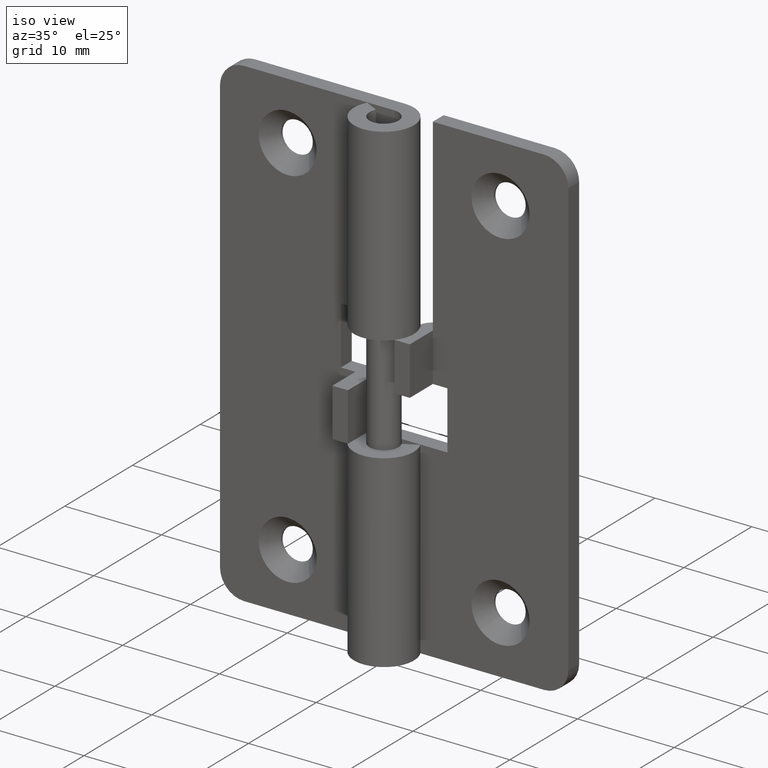
[diagram: clean part render]
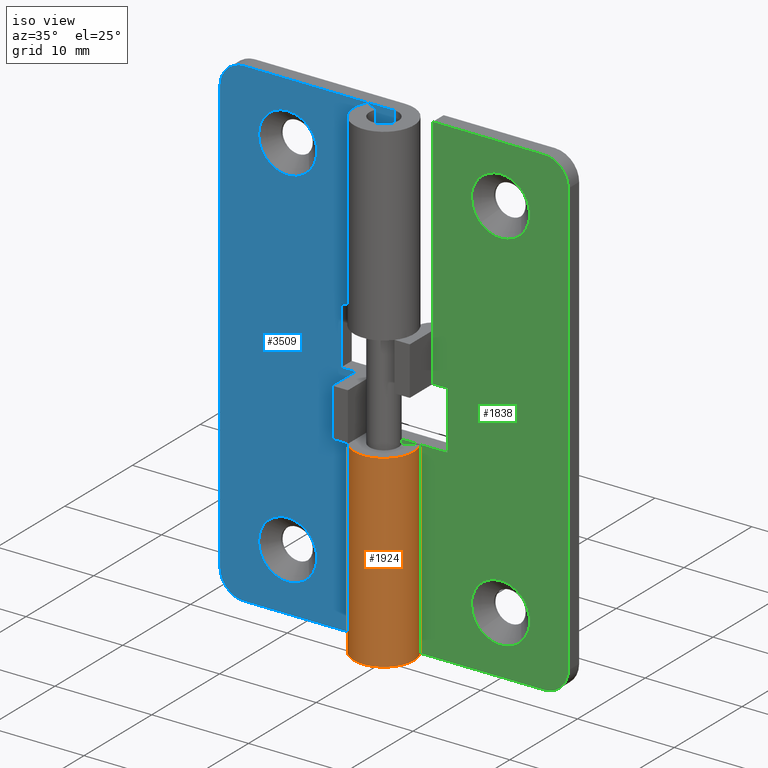
[diagram: same view with three faces highlighted in distinct colors, each labeled with its STEP entity id]
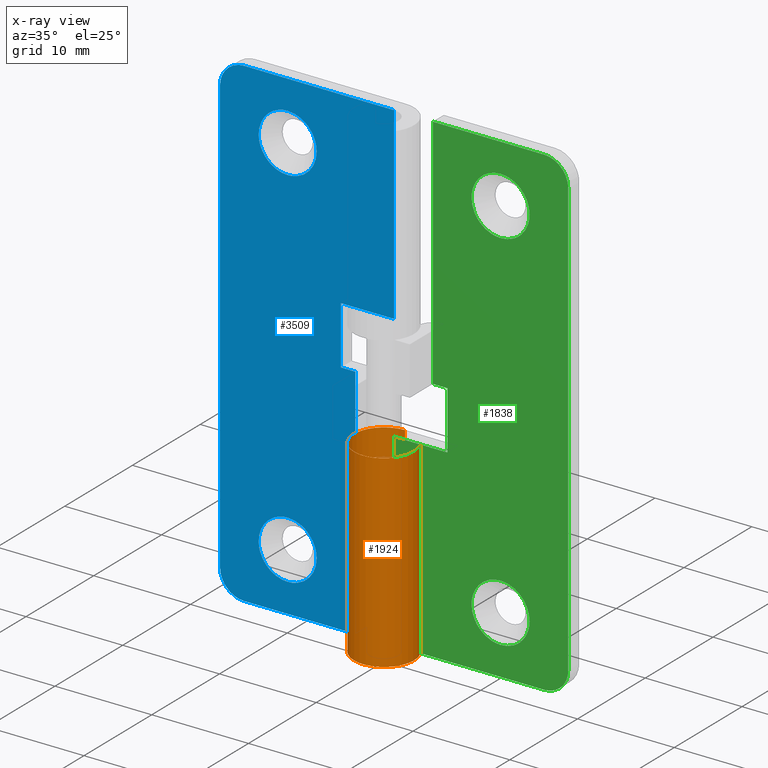
[diagram: x-ray of the same camera — body ghosted, the three highlighted faces saturated]
A machine part, iso view with three faces highlighted in distinct colors.
The next image is the same camera in x-ray (body ghosted, the three faces saturated) — at least one of them is partly hidden behind the body in this view.
Their STEP definitions:

[orange] entity #1924 — the highlighted face is a freeform B-spline surface patch.
#1357=CARTESIAN_POINT('',(0.0,3.100002000000000,19.500000000000000));
#1358=VERTEX_POINT('',#1357);
#1359=CARTESIAN_POINT('',(-1.599213554981781,-2.655666362375521,19.500000000000000));
#1360=VERTEX_POINT('',#1359);
#1361=CARTESIAN_POINT('',(0.0,3.100002000000000,19.500000000000000));
#1362=CARTESIAN_POINT('',(-0.220354141231056,3.100041655949251,19.499999999999979));
#1363=CARTESIAN_POINT('',(-0.587586340449858,3.060661259385621,19.500000000000060));
#1364=CARTESIAN_POINT('',(-1.193451300869684,2.883666341587294,19.499999999999911));
#1365=CARTESIAN_POINT('',(-1.718225046226158,2.608912993477227,19.500000000000110));
#1366=CARTESIAN_POINT('',(-2.154791628538967,2.244365825748330,19.499999999999879));
#1367=CARTESIAN_POINT('',(-2.539554166504057,1.812775552614183,19.500000000000259));
#1368=CARTESIAN_POINT('',(-2.863373232118977,1.266465549805293,19.499999999999691));
#1369=CARTESIAN_POINT('',(-3.054350544505172,0.629277963395149,19.500000000000110));
#1370=CARTESIAN_POINT('',(-3.120682201269755,-0.009234162655363,19.499999999999929));
#1371=CARTESIAN_POINT('',(-3.064805186370466,-0.598570502617032,19.500000000000050));
#1372=CARTESIAN_POINT('',(-2.901473813870882,-1.121343539513749,19.499999999999950));
#1373=CARTESIAN_POINT('',(-2.688907562135958,-1.567207862000972,19.500000000000028));
#1374=CARTESIAN_POINT('',(-2.315494378992751,-2.116449466917167,19.499999999999950));
#1375=CARTESIAN_POINT('',(-1.896003720779815,-2.477220210333711,19.499999999999972));
#1376=CARTESIAN_POINT('',(-1.599213554981781,-2.655666362375521,19.500000000000000));
#1377=B_SPLINE_CURVE_WITH_KNOTS('',3,(#1361,#1362,#1363,#1364,#1365,#1366,#1367,#1368,#1369,#1370,#1371,#1372,#1373,#1374,#1375,#1376),.UNSPECIFIED.,.F.,.U.,(4,1,1,1,1,1,1,1,1,1,1,1,1,4),(0.000000137951071,0.661053900856061,1.101768180298366,1.888756636234779,2.423909275321504,2.801670161706647,3.620121326485430,4.312632884064888,4.784830670244383,5.540353606740831,6.075505701115500,6.421779887115845,7.019886405325571,8.058700535100030),.UNSPECIFIED.);
#1378=EDGE_CURVE('',#1358,#1360,#1377,.T.);
#1380=CARTESIAN_POINT('',(2.739979116877470,1.450017806480628,19.500000000000000));
#1381=VERTEX_POINT('',#1380);
#1382=CARTESIAN_POINT('',(-1.599213554981781,-2.655666362375521,19.500000000000000));
#1383=CARTESIAN_POINT('',(-1.410463657645814,-2.769373480697419,19.500000000000011));
#1384=CARTESIAN_POINT('',(-1.075555663697411,-2.925095541161150,19.500000000000000));
#1385=CARTESIAN_POINT('',(-0.577114771429349,-3.056460498182061,19.500000000000011));
#1386=CARTESIAN_POINT('',(-0.138234924043104,-3.107392288223059,19.499999999999918));
#1387=CARTESIAN_POINT('',(0.377052588891971,-3.093698877414701,19.500000000000082));
#1388=CARTESIAN_POINT('',(0.935055212774864,-2.978073402128163,19.499999999999879));
#1389=CARTESIAN_POINT('',(1.438357800029094,-2.760838282681207,19.500000000000160));
#1390=CARTESIAN_POINT('',(1.891222051281780,-2.473862186340986,19.500000000000281));
#1391=CARTESIAN_POINT('',(2.285146486244192,-2.123261577677471,19.499999999999140));
#1392=CARTESIAN_POINT('',(2.687241868505284,-1.595048048625539,19.499999999999641));
#1393=CARTESIAN_POINT('',(2.961961892512929,-0.999538342001350,19.500000000001780));
#1394=CARTESIAN_POINT('',(3.086497492610616,-0.411679720688347,19.499999999999019));
#1395=CARTESIAN_POINT('',(3.113336773354832,0.166086950988425,19.499999999999620));
#1396=CARTESIAN_POINT('',(3.028575172153826,0.783608803119065,19.500000000002611));
#1397=CARTESIAN_POINT('',(2.852905902626935,1.236728197239146,19.499999999996380));
#1398=CARTESIAN_POINT('',(2.739979116877470,1.450017806480628,19.500000000000000));
#1399=B_SPLINE_CURVE_WITH_KNOTS('',3,(#1382,#1383,#1384,#1385,#1386,#1387,#1388,#1389,#1390,#1391,#1392,#1393,#1394,#1395,#1396,#1397,#1398),.UNSPECIFIED.,.F.,.U.,(4,1,1,1,1,1,1,1,1,1,1,1,1,1,4),(0.000000138034990,0.661053862114447,1.101768115755126,1.542482275759558,1.983196633439818,2.644266474914692,3.242379406099055,3.620121116360793,4.249678708263621,4.816329239068423,5.603309081357913,6.201423304016623,6.610664484400884,7.334684765018944,8.058700064193332),.UNSPECIFIED.);
#1400=EDGE_CURVE('',#1360,#1381,#1399,.T.);
#1695=CARTESIAN_POINT('',(0.0,3.100005999999920,0.0));
#1696=VERTEX_POINT('',#1695);
#1747=CARTESIAN_POINT('',(2.739979116877470,1.450017806480626,0.0));
#1748=VERTEX_POINT('',#1747);
#1754=CARTESIAN_POINT('',(-1.599213932638567,-2.655664134955736,0.0));
#1755=VERTEX_POINT('',#1754);
#1756=CARTESIAN_POINT('',(-1.599213932638567,-2.655664134955736,0.0));
#1757=CARTESIAN_POINT('',(-1.410463529529099,-2.769367712431758,0.0));
#1758=CARTESIAN_POINT('',(-1.008578184479177,-2.956252625924666,0.0));
#1759=CARTESIAN_POINT('',(-0.308629603779430,-3.114453444299730,0.0));
#1760=CARTESIAN_POINT('',(0.358119619292160,-3.103458703263753,0.0));
#1761=CARTESIAN_POINT('',(0.932181733474697,-2.969130406786211,0.0));
#1762=CARTESIAN_POINT('',(1.390959876542113,-2.784813979717227,0.0));
#1763=CARTESIAN_POINT('',(1.869906733009813,-2.498124430257740,0.0));
#1764=CARTESIAN_POINT('',(2.331033226376157,-2.079267227039503,0.0));
#1765=CARTESIAN_POINT('',(2.661971771934239,-1.615733438790191,0.0));
#1766=CARTESIAN_POINT('',(2.898870993656463,-1.134752314033852,0.0));
#1767=CARTESIAN_POINT('',(3.045400065835583,-0.661440285065134,0.0));
#1768=CARTESIAN_POINT('',(3.118767772784988,-0.065848768475892,0.0));
#1769=CARTESIAN_POINT('',(3.068285783858411,0.650364070920452,0.0));
#1770=CARTESIAN_POINT('',(2.887370424635193,1.171849147069588,0.0));
#1771=CARTESIAN_POINT('',(2.739979116877470,1.450017806480626,0.0));
#1772=B_SPLINE_CURVE_WITH_KNOTS('',3,(#1756,#1757,#1758,#1759,#1760,#1761,#1762,#1763,#1764,#1765,#1766,#1767,#1768,#1769,#1770,#1771),.UNSPECIFIED.,.F.,.U.,(4,1,1,1,1,1,1,1,1,1,1,1,1,4),(0.000000137918708,0.661053794528414,1.322124389290089,2.140594229630543,2.644266204039937,3.084975898927475,3.620120743059685,4.312632189541410,4.942232189659473,5.319995146863714,5.918107389246528,6.421778852825442,7.114335278605990,8.058699237253416),.UNSPECIFIED.);
#1773=EDGE_CURVE('',#1755,#1748,#1772,.T.);
#1775=CARTESIAN_POINT('',(0.0,3.100005999999920,0.0));
#1776=CARTESIAN_POINT('',(-0.220349538642803,3.100032536709714,0.0));
#1777=CARTESIAN_POINT('',(-0.703032681392937,3.048364952209422,0.0));
#1778=CARTESIAN_POINT('',(-1.311287156783747,2.833094768685873,0.0));
#1779=CARTESIAN_POINT('',(-1.878829656185737,2.490344608417046,0.0));
#1780=CARTESIAN_POINT('',(-2.340740393552502,2.071807184152871,0.0));
#1781=CARTESIAN_POINT('',(-2.697994077143679,1.561882468475072,0.0));
#1782=CARTESIAN_POINT('',(-2.934058296296745,1.044963730864287,0.0));
#1783=CARTESIAN_POINT('',(-3.075375443460060,0.515590371694811,0.0));
#1784=CARTESIAN_POINT('',(-3.121548705564540,-0.115243248815751,0.0));
#1785=CARTESIAN_POINT('',(-3.032933565512027,-0.742905580941454,0.0));
#1786=CARTESIAN_POINT('',(-2.791906889348922,-1.406495690716886,0.0));
#1787=CARTESIAN_POINT('',(-2.356651226838697,-2.082999157682701,0.0));
#1788=CARTESIAN_POINT('',(-1.886958604359158,-2.482596284732474,0.0));
#1789=CARTESIAN_POINT('',(-1.599213932638567,-2.655664134955736,0.0));
#1790=B_SPLINE_CURVE_WITH_KNOTS('',3,(#1775,#1776,#1777,#1778,#1779,#1780,#1781,#1782,#1783,#1784,#1785,#1786,#1787,#1788,#1789),.UNSPECIFIED.,.F.,.U.,(4,1,1,1,1,1,1,1,1,1,1,1,4),(0.000000137922887,0.661053881195047,1.448037314583423,1.920237294217460,2.644266550761215,3.305332237084098,3.777522088141811,4.344131427926460,4.942232837669796,5.666267152640196,6.232905162994952,7.051381996144282,8.058700293898633),.UNSPECIFIED.);
#1791=EDGE_CURVE('',#1696,#1755,#1790,.T.);
#1880=CARTESIAN_POINT('',(2.739979116877470,1.450017806480626,0.0));
#1881=CARTESIAN_POINT('',(2.739979116877470,1.450017806480628,19.500000000000000));
#1882=QUASI_UNIFORM_CURVE('',1,(#1880,#1881),.UNSPECIFIED.,.F.,.U.);
#1883=EDGE_CURVE('',#1748,#1381,#1882,.T.);
#1890=CARTESIAN_POINT('',(2.698107879547794,1.526515990862069,-0.487500000000000));
#1891=CARTESIAN_POINT('',(2.698107879547794,1.526515990862069,19.999687500000000));
#1892=CARTESIAN_POINT('',(4.560933799259007,-1.766017675529659,-0.487500000000000));
#1893=CARTESIAN_POINT('',(4.560933799259007,-1.766017675529659,19.999687499999997));
#1894=CARTESIAN_POINT('',(0.966526673177142,-2.945481860421589,-0.487500000000000));
#1895=CARTESIAN_POINT('',(0.966526673177142,-2.945481860421589,19.999687500000000));
#1896=CARTESIAN_POINT('',(-2.627880452904722,-4.124946045313520,-0.487500000000000));
#1897=CARTESIAN_POINT('',(-2.627880452904722,-4.124946045313520,19.999687499999997));
#1898=CARTESIAN_POINT('',(-3.077984969219430,-0.368843773561061,-0.487500000000000));
#1899=CARTESIAN_POINT('',(-3.077984969219430,-0.368843773561061,19.999687500000000));
#1900=CARTESIAN_POINT('',(-3.528089485534137,3.387258498191398,-0.487500000000000));
#1901=CARTESIAN_POINT('',(-3.528089485534137,3.387258498191398,19.999687499999997));
#1902=CARTESIAN_POINT('',(0.243223667510889,3.090449716076619,-0.487500000000000));
#1903=CARTESIAN_POINT('',(0.243223667510889,3.090449716076619,19.999687500000000));
#1911=(BOUNDED_SURFACE()B_SPLINE_SURFACE(1,2,((#1890,#1892,#1894,#1896,#1898,#1900,#1902),(#1891,#1893,#1895,#1897,#1899,#1901,#1903)),.UNSPECIFIED.,.F.,.F.,.U.)B_SPLINE_SURFACE_WITH_KNOTS((2,2),(3,2,2,3),(0.0,20.487187500000001),(0.0,5.870292891124143,11.740585782248290,17.610878673372429),.UNSPECIFIED.)GEOMETRIC_REPRESENTATION_ITEM()RATIONAL_B_SPLINE_SURFACE(((1.0,0.633830967398710,1.0,0.633830967398710,1.0,0.633830967398710,1.0),(1.0,0.633830967398710,1.0,0.633830967398710,1.0,0.633830967398710,1.0)))REPRESENTATION_ITEM('')SURFACE());
#1912=ORIENTED_EDGE('',*,*,#1883,.T.);
#1913=ORIENTED_EDGE('',*,*,#1400,.F.);
#1914=ORIENTED_EDGE('',*,*,#1378,.F.);
#1915=CARTESIAN_POINT('',(0.0,3.100005999999920,0.0));
#1916=CARTESIAN_POINT('',(0.0,3.100002000000000,19.500000000000000));
#1917=QUASI_UNIFORM_CURVE('',1,(#1915,#1916),.UNSPECIFIED.,.F.,.U.);
#1918=EDGE_CURVE('',#1696,#1358,#1917,.T.);
#1919=ORIENTED_EDGE('',*,*,#1918,.F.);
#1920=ORIENTED_EDGE('',*,*,#1791,.T.);
#1921=ORIENTED_EDGE('',*,*,#1773,.T.);
#1922=EDGE_LOOP('',(#1912,#1913,#1914,#1919,#1920,#1921));
#1923=FACE_OUTER_BOUND('',#1922,.T.);
#1924=ADVANCED_FACE('',(#1923),#1911,.T.);

[blue] entity #3509 — the highlighted face is a freeform B-spline surface patch.
#2272=CARTESIAN_POINT('',(-8.850047220074162,1.500000063605101,46.092310844090257));
#2273=VERTEX_POINT('',#2272);
#2279=CARTESIAN_POINT('',(-11.0,1.500000000000000,47.000015000000012));
#2280=VERTEX_POINT('',#2279);
#2281=CARTESIAN_POINT('',(-11.0,1.500000000000000,47.000015000000012));
#2282=CARTESIAN_POINT('',(-10.700366076252450,1.500000008864500,47.000149646940883));
#2283=CARTESIAN_POINT('',(-10.163615401816520,1.500000024743940,46.918918827770767));
#2284=CARTESIAN_POINT('',(-9.428362555276005,1.500000046495993,46.592084424978502));
#2285=CARTESIAN_POINT('',(-9.032836973171911,1.500000058197373,46.280261415142917));
#2286=CARTESIAN_POINT('',(-8.850047220074162,1.500000063605101,46.092310844090257));
#2287=B_SPLINE_CURVE_WITH_KNOTS('',3,(#2281,#2282,#2283,#2284,#2285,#2286),.UNSPECIFIED.,.F.,.U.,(4,1,1,4),(0.000000017668546,0.898874044831355,1.610467646718164,2.396980846779101),.UNSPECIFIED.);
#2288=EDGE_CURVE('',#2280,#2273,#2287,.T.);
#2290=CARTESIAN_POINT('',(-13.999999999999959,1.500000000000000,44.000015509028863));
#2291=VERTEX_POINT('',#2290);
#2292=CARTESIAN_POINT('',(-13.999999999999959,1.500000000000000,44.000015509028863));
#2293=CARTESIAN_POINT('',(-14.000035539023470,1.499999999999999,44.208636649064772));
#2294=CARTESIAN_POINT('',(-13.964000418174420,1.500000000000000,44.552231140889923));
#2295=CARTESIAN_POINT('',(-13.809776083586289,1.500000000000008,45.096606111140353));
#2296=CARTESIAN_POINT('',(-13.560680464653270,1.499999999999981,45.607033169759553));
#2297=CARTESIAN_POINT('',(-13.185758675213890,1.500000000000026,46.081343637919389));
#2298=CARTESIAN_POINT('',(-12.682156544030470,1.499999999999992,46.515866609323389));
#2299=CARTESIAN_POINT('',(-12.100949838087660,1.499999999999987,46.821958963302677));
#2300=CARTESIAN_POINT('',(-11.490865175099559,1.500000000000028,46.974674559297149));
#2301=CARTESIAN_POINT('',(-11.147256880611501,1.499999999999973,47.000017477590490));
#2302=CARTESIAN_POINT('',(-11.0,1.500000000000000,47.000015000000012));
#2303=B_SPLINE_CURVE_WITH_KNOTS('',3,(#2292,#2293,#2294,#2295,#2296,#2297,#2298,#2299,#2300,#2301,#2302),.UNSPECIFIED.,.F.,.U.,(4,1,1,1,1,1,1,1,4),(0.000000061384648,0.625857402552536,1.030840878743207,1.693535705879872,2.319411333266166,2.834811532312297,3.681579151361144,4.270642616794484,4.712418261729620),.UNSPECIFIED.);
#2304=EDGE_CURVE('',#2291,#2280,#2303,.T.);
#2306=CARTESIAN_POINT('',(-11.0,1.500000000000000,41.000014999999998));
#2307=VERTEX_POINT('',#2306);
#2308=CARTESIAN_POINT('',(-11.0,1.500000000000000,41.000014999999998));
#2309=CARTESIAN_POINT('',(-11.269985914808469,1.499999999999996,40.999937270499103));
#2310=CARTESIAN_POINT('',(-11.809918257304810,1.500000000000001,41.073363617945709));
#2311=CARTESIAN_POINT('',(-12.504242075905450,1.499999999999997,41.370987534653523));
#2312=CARTESIAN_POINT('',(-12.987599885385800,1.500000000000003,41.734186286040703));
#2313=CARTESIAN_POINT('',(-13.377599345341320,1.499999999999997,42.143793561401473));
#2314=CARTESIAN_POINT('',(-13.656442887310121,1.500000000000002,42.566690834647552));
#2315=CARTESIAN_POINT('',(-13.924849172518220,1.499999999999996,43.214725953195327));
#2316=CARTESIAN_POINT('',(-14.000205438131250,1.499999999999996,43.680913479414812));
#2317=CARTESIAN_POINT('',(-13.999999999999959,1.500000000000000,44.000015509028863));
#2318=B_SPLINE_CURVE_WITH_KNOTS('',3,(#2308,#2309,#2310,#2311,#2312,#2313,#2314,#2315,#2316,#2317),.UNSPECIFIED.,.F.,.U.,(4,1,1,1,1,1,1,4),(0.000000061235952,0.809946644198388,1.619896040772446,2.245771054943591,2.613913097183683,3.313418124025209,3.755210161213439,4.712418835527201),.UNSPECIFIED.);
#2319=EDGE_CURVE('',#2307,#2291,#2318,.T.);
#2321=CARTESIAN_POINT('',(-8.788167849369197,1.499999936613527,41.973244248683400));
#2322=VERTEX_POINT('',#2321);
#2323=CARTESIAN_POINT('',(-8.788167849369197,1.499999936613527,41.973244248683400));
#2324=CARTESIAN_POINT('',(-8.928166667060637,1.499999940625601,41.820413686951213));
#2325=CARTESIAN_POINT('',(-9.230280776051822,1.499999949283555,41.552606507152831));
#2326=CARTESIAN_POINT('',(-9.692120088817779,1.499999962518903,41.285333365623949));
#2327=CARTESIAN_POINT('',(-10.274669018935320,1.499999979213530,41.064235213712337));
#2328=CARTESIAN_POINT('',(-10.702043254753940,1.499999991461191,40.999875950277300));
#2329=CARTESIAN_POINT('',(-11.0,1.500000000000000,41.000014999999998));
#2330=B_SPLINE_CURVE_WITH_KNOTS('',3,(#2323,#2324,#2325,#2326,#2327,#2328,#2329),.UNSPECIFIED.,.F.,.U.,(4,1,1,1,4),(0.000000018457027,0.621777926436460,1.204704239355968,1.593300361966546,2.487111650349161),.UNSPECIFIED.);
#2331=EDGE_CURVE('',#2322,#2307,#2330,.T.);
#2363=CARTESIAN_POINT('',(-8.000000000000043,1.500000000000000,44.000014490971203));
#2364=VERTEX_POINT('',#2363);
#2365=CARTESIAN_POINT('',(-8.000000000000043,1.500000000000000,44.000014490971203));
#2366=CARTESIAN_POINT('',(-7.999833283792561,1.499999990212512,43.687061433280959));
#2367=CARTESIAN_POINT('',(-8.084205177603565,1.499999973541857,43.154020305902087));
#2368=CARTESIAN_POINT('',(-8.390619837005460,1.499999952260430,42.473551082845532));
#2369=CARTESIAN_POINT('',(-8.647207083263265,1.499999941423453,42.127040651307610));
#2370=CARTESIAN_POINT('',(-8.788167849369197,1.499999936613527,41.973244248683400));
#2371=B_SPLINE_CURVE_WITH_KNOTS('',3,(#2365,#2366,#2367,#2368,#2369,#2370),.UNSPECIFIED.,.F.,.U.,(4,1,1,4),(0.000000013950470,0.938807377976176,1.599438559575307,2.225306812300063),.UNSPECIFIED.);
#2372=EDGE_CURVE('',#2364,#2322,#2371,.T.);
#2374=CARTESIAN_POINT('',(-8.850047220074162,1.500000063605101,46.092310844090257));
#2375=CARTESIAN_POINT('',(-8.648082739788597,1.500000057301931,45.884967421624232));
#2376=CARTESIAN_POINT('',(-8.412283166241192,1.500000047400117,45.559245974524472));
#2377=CARTESIAN_POINT('',(-8.166610212595082,1.500000031033074,45.020850867164953));
#2378=CARTESIAN_POINT('',(-8.033902855036562,1.500000016863882,44.554753196582752));
#2379=CARTESIAN_POINT('',(-7.999985614473401,1.500000005499069,44.180907137883523));
#2380=CARTESIAN_POINT('',(-8.000000000000043,1.500000000000000,44.000014490971203));
#2381=B_SPLINE_CURVE_WITH_KNOTS('',3,(#2374,#2375,#2376,#2377,#2378,#2379,#2380),.UNSPECIFIED.,.F.,.U.,(4,1,1,1,4),(0.000000014877658,0.868294838393191,1.193888823283353,1.772757790191058,2.315438087539776),.UNSPECIFIED.);
#2382=EDGE_CURVE('',#2273,#2364,#2381,.T.);
#2643=CARTESIAN_POINT('',(-8.850047220074160,1.500000063605100,8.092295844090160));
#2644=VERTEX_POINT('',#2643);
#2650=CARTESIAN_POINT('',(-11.0,1.500000000000000,8.999999999999901));
#2651=VERTEX_POINT('',#2650);
#2652=CARTESIAN_POINT('',(-11.0,1.500000000000000,8.999999999999901));
#2653=CARTESIAN_POINT('',(-10.787766456799361,1.500000006278804,9.000029148684082));
#2654=CARTESIAN_POINT('',(-10.375804632567650,1.500000018466459,8.956103395898794));
#2655=CARTESIAN_POINT('',(-9.790713302843475,1.500000035776041,8.767346519889957));
#2656=CARTESIAN_POINT('',(-9.276609309130317,1.500000050985508,8.478498543598340));
#2657=CARTESIAN_POINT('',(-8.980638238837036,1.500000059741642,8.226511116861277));
#2658=CARTESIAN_POINT('',(-8.850047220074160,1.500000063605100,8.092295844090160));
#2659=B_SPLINE_CURVE_WITH_KNOTS('',3,(#2652,#2653,#2654,#2655,#2656,#2657,#2658),.UNSPECIFIED.,.F.,.U.,(4,1,1,1,4),(0.000000017667979,0.636698603345418,1.235933333419246,1.835189017900914,2.396980846779126),.UNSPECIFIED.);
#2660=EDGE_CURVE('',#2651,#2644,#2659,.T.);
#2662=CARTESIAN_POINT('',(-13.999999999999959,1.500000000000000,6.000000509028748));
#2663=VERTEX_POINT('',#2662);
#2664=CARTESIAN_POINT('',(-13.999999999999959,1.500000000000000,6.000000509028748));
#2665=CARTESIAN_POINT('',(-14.000023304050529,1.500000000000003,6.208619177832095));
#2666=CARTESIAN_POINT('',(-13.955029195351390,1.499999999999996,6.638123566065174));
#2667=CARTESIAN_POINT('',(-13.734334365328230,1.500000000000005,7.306414370320521));
#2668=CARTESIAN_POINT('',(-13.376553635588230,1.499999999999995,7.871375739305604));
#2669=CARTESIAN_POINT('',(-12.897486563061371,1.500000000000023,8.350395049060314));
#2670=CARTESIAN_POINT('',(-12.412686059848671,1.499999999999971,8.670043427136477));
#2671=CARTESIAN_POINT('',(-11.760779093873539,1.500000000000003,8.930739672201312));
#2672=CARTESIAN_POINT('',(-11.294541507549390,1.500000000000018,9.000129902384984));
#2673=CARTESIAN_POINT('',(-11.0,1.500000000000000,8.999999999999901));
#2674=B_SPLINE_CURVE_WITH_KNOTS('',3,(#2664,#2665,#2666,#2667,#2668,#2669,#2670,#2671,#2672,#2673),.UNSPECIFIED.,.F.,.U.,(4,1,1,1,1,1,1,4),(0.000000061409706,0.625857402575471,1.288552992322861,2.098503183432060,2.613912779532722,3.313417720755063,3.828845881088585,4.712418261729479),.UNSPECIFIED.);
#2675=EDGE_CURVE('',#2663,#2651,#2674,.T.);
#2677=CARTESIAN_POINT('',(-11.0,1.500000000000000,2.999999999999901));
#2678=VERTEX_POINT('',#2677);
#2679=CARTESIAN_POINT('',(-11.0,1.500000000000000,2.999999999999901));
#2680=CARTESIAN_POINT('',(-11.306819138945620,1.499999999999999,2.999832281261671));
#2681=CARTESIAN_POINT('',(-11.785319675286431,1.499999999999999,3.074091950510619));
#2682=CARTESIAN_POINT('',(-12.342911685826300,1.500000000000000,3.305108098253596));
#2683=CARTESIAN_POINT('',(-12.743659966457781,1.500000000000004,3.545297482405724));
#2684=CARTESIAN_POINT('',(-13.105469012303130,1.499999999999998,3.842222784311961));
#2685=CARTESIAN_POINT('',(-13.459461016145630,1.500000000000002,4.252593779368971));
#2686=CARTESIAN_POINT('',(-13.763743003349241,1.500000000000000,4.774609074938540));
#2687=CARTESIAN_POINT('',(-13.957717811894740,1.500000000000002,5.374135947580574));
#2688=CARTESIAN_POINT('',(-14.000014410925710,1.499999999999999,5.803653289848567));
#2689=CARTESIAN_POINT('',(-13.999999999999959,1.500000000000000,6.000000509028748));
#2690=B_SPLINE_CURVE_WITH_KNOTS('',3,(#2679,#2680,#2681,#2682,#2683,#2684,#2685,#2686,#2687,#2688,#2689),.UNSPECIFIED.,.F.,.U.,(4,1,1,1,1,1,1,1,4),(0.000000061238113,0.920393867323970,1.435820227858345,1.803985506856585,2.319411615220553,2.834811878019678,3.423866427887661,4.123371049004908,4.712418835527187),.UNSPECIFIED.);
#2691=EDGE_CURVE('',#2678,#2663,#2690,.T.);
#2693=CARTESIAN_POINT('',(-8.788167849369202,1.499999936613530,3.973229248683305));
#2694=VERTEX_POINT('',#2693);
#2695=CARTESIAN_POINT('',(-8.788167849369202,1.499999936613530,3.973229248683305));
#2696=CARTESIAN_POINT('',(-9.015553853737806,1.499999943129936,3.724725118596472));
#2697=CARTESIAN_POINT('',(-9.441095102038508,1.499999955325056,3.394562626681811));
#2698=CARTESIAN_POINT('',(-10.209900642078210,1.499999977357408,3.073953804945445));
#2699=CARTESIAN_POINT('',(-10.702049853283469,1.499999991461375,2.999871638153232));
#2700=CARTESIAN_POINT('',(-11.0,1.500000000000000,2.999999999999901));
#2701=B_SPLINE_CURVE_WITH_KNOTS('',3,(#2695,#2696,#2697,#2698,#2699,#2700),.UNSPECIFIED.,.F.,.U.,(4,1,1,4),(0.000000018455060,1.010395989857040,1.593300361965489,2.487111650349196),.UNSPECIFIED.);
#2702=EDGE_CURVE('',#2694,#2678,#2701,.T.);
#2734=CARTESIAN_POINT('',(-8.000000000000043,1.500000000000000,5.999999490971101));
#2735=VERTEX_POINT('',#2734);
#2736=CARTESIAN_POINT('',(-8.000000000000043,1.500000000000000,5.999999490971101));
#2737=CARTESIAN_POINT('',(-7.999966786492895,1.499999993475364,5.791375480276527));
#2738=CARTESIAN_POINT('',(-8.037640448447283,1.499999982239026,5.432095723262154));
#2739=CARTESIAN_POINT('',(-8.200427791557500,1.499999964791122,4.874202331850470));
#2740=CARTESIAN_POINT('',(-8.443059158320509,1.499999949830645,4.395843974663303));
#2741=CARTESIAN_POINT('',(-8.678543667509603,1.499999940354831,4.092856604810828));
#2742=CARTESIAN_POINT('',(-8.788167849369202,1.499999936613530,3.973229248683305));
#2743=B_SPLINE_CURVE_WITH_KNOTS('',3,(#2736,#2737,#2738,#2739,#2740,#2741,#2742),.UNSPECIFIED.,.F.,.U.,(4,1,1,1,4),(0.000000013948977,0.625868266664518,1.077892164061663,1.738521665840167,2.225306812300066),.UNSPECIFIED.);
#2744=EDGE_CURVE('',#2735,#2694,#2743,.T.);
#2746=CARTESIAN_POINT('',(-8.850047220074160,1.500000063605100,8.092295844090160));
#2747=CARTESIAN_POINT('',(-8.681789628099267,1.500000058351600,7.919481514312674));
#2748=CARTESIAN_POINT('',(-8.402069326346084,1.500000047189309,7.552296392131674));
#2749=CARTESIAN_POINT('',(-8.083969714700348,1.500000025659720,6.844078814757848));
#2750=CARTESIAN_POINT('',(-7.999837852468873,1.500000009532371,6.313567656354734));
#2751=CARTESIAN_POINT('',(-8.000000000000043,1.500000000000000,5.999999490971101));
#2752=B_SPLINE_CURVE_WITH_KNOTS('',3,(#2746,#2747,#2748,#2749,#2750,#2751),.UNSPECIFIED.,.F.,.U.,(4,1,1,4),(0.000000014879570,0.723576812631959,1.374788163149456,2.315438087539759),.UNSPECIFIED.);
#2753=EDGE_CURVE('',#2644,#2735,#2752,.T.);
#2861=CARTESIAN_POINT('',(-4.0,1.500000000000000,19.500000000000000));
#2862=VERTEX_POINT('',#2861);
#2904=CARTESIAN_POINT('',(-4.0,1.499999999999946,24.500000000000000));
#2905=VERTEX_POINT('',#2904);
#2906=CARTESIAN_POINT('',(-4.0,1.500000000000000,19.500000000000000));
#2907=CARTESIAN_POINT('',(-4.0,1.499999999999946,24.500000000000000));
#2908=QUASI_UNIFORM_CURVE('',1,(#2906,#2907),.UNSPECIFIED.,.F.,.U.);
#2909=EDGE_CURVE('',#2862,#2905,#2908,.T.);
#2934=CARTESIAN_POINT('',(-4.0,1.500000000000000,0.0));
#2935=VERTEX_POINT('',#2934);
#2936=CARTESIAN_POINT('',(-4.0,1.500000000000000,0.0));
#2937=CARTESIAN_POINT('',(-4.0,1.500000000000000,19.500000000000000));
#2938=QUASI_UNIFORM_CURVE('',1,(#2936,#2937),.UNSPECIFIED.,.F.,.U.);
#2939=EDGE_CURVE('',#2935,#2862,#2938,.T.);
#3030=CARTESIAN_POINT('',(0.0,1.500000000000000,30.500007999999951));
#3031=VERTEX_POINT('',#3030);
#3049=CARTESIAN_POINT('',(-5.500000000000000,1.499999999999946,30.500008000000001));
#3050=VERTEX_POINT('',#3049);
#3051=CARTESIAN_POINT('',(-5.500000000000000,1.499999999999946,30.500008000000001));
#3052=CARTESIAN_POINT('',(0.0,1.500000000000000,30.500007999999951));
#3053=QUASI_UNIFORM_CURVE('',1,(#3051,#3052),.UNSPECIFIED.,.F.,.U.);
#3054=EDGE_CURVE('',#3050,#3031,#3053,.T.);
#3078=CARTESIAN_POINT('',(-5.500000000000000,1.499999999999946,24.500000000000000));
#3079=VERTEX_POINT('',#3078);
#3085=CARTESIAN_POINT('',(-4.0,1.499999999999946,24.500000000000000));
#3086=CARTESIAN_POINT('',(-5.500000000000000,1.499999999999946,24.500000000000000));
#3087=QUASI_UNIFORM_CURVE('',1,(#3085,#3086),.UNSPECIFIED.,.F.,.U.);
#3088=EDGE_CURVE('',#2905,#3079,#3087,.T.);
#3101=CARTESIAN_POINT('',(-5.500000000000000,1.499999999999946,24.500000000000000));
#3102=CARTESIAN_POINT('',(-5.500000000000000,1.499999999999946,30.500008000000001));
#3103=QUASI_UNIFORM_CURVE('',1,(#3101,#3102),.UNSPECIFIED.,.F.,.U.);
#3104=EDGE_CURVE('',#3079,#3050,#3103,.T.);
#3147=CARTESIAN_POINT('',(-18.0,1.500000000000000,47.500014999999998));
#3148=VERTEX_POINT('',#3147);
#3154=CARTESIAN_POINT('',(-15.500000000000000,1.500000000000000,50.000015000000012));
#3155=VERTEX_POINT('',#3154);
#3156=CARTESIAN_POINT('',(-15.500000000000000,1.500000000000000,50.000015000000012));
#3157=CARTESIAN_POINT('',(-15.745450254185020,1.499999999999999,50.000115204822542));
#3158=CARTESIAN_POINT('',(-16.133990228048219,1.500000000000000,49.942311077261479));
#3159=CARTESIAN_POINT('',(-16.648642921695782,1.499999999999999,49.736467455972480));
#3160=CARTESIAN_POINT('',(-17.021950265481870,1.500000000000006,49.500073259373991));
#3161=CARTESIAN_POINT('',(-17.339420584709881,1.499999999999993,49.208748188725259));
#3162=CARTESIAN_POINT('',(-17.612967651183961,1.500000000000004,48.862660632628661));
#3163=CARTESIAN_POINT('',(-17.828586481036179,1.499999999999999,48.453263925989432));
#3164=CARTESIAN_POINT('',(-17.968762008368170,1.500000000000003,47.980653335106702));
#3165=CARTESIAN_POINT('',(-18.000022071687830,1.499999999999999,47.663639980807403));
#3166=CARTESIAN_POINT('',(-18.0,1.500000000000000,47.500014999999998));
#3167=B_SPLINE_CURVE_WITH_KNOTS('',3,(#3156,#3157,#3158,#3159,#3160,#3161,#3162,#3163,#3164,#3165,#3166),.UNSPECIFIED.,.F.,.U.,(4,1,1,1,1,1,1,1,4),(0.000000067666696,0.736314262238501,1.165837051134740,1.656724789686482,2.055540691917766,2.454380460503896,2.975942056193686,3.436142757995264,3.927015457192302),.UNSPECIFIED.);
#3168=EDGE_CURVE('',#3155,#3148,#3167,.T.);
#3208=CARTESIAN_POINT('',(-15.500000000000000,1.500000000000000,0.0));
#3209=VERTEX_POINT('',#3208);
#3215=CARTESIAN_POINT('',(-18.0,1.500000000000000,2.499999999999945));
#3216=VERTEX_POINT('',#3215);
#3217=CARTESIAN_POINT('',(-18.0,1.500000000000000,2.499999999999945));
#3218=CARTESIAN_POINT('',(-18.000162723190250,1.500000000000000,2.234084136458118));
#3219=CARTESIAN_POINT('',(-17.942349941368999,1.500000000000000,1.876256139547348));
#3220=CARTESIAN_POINT('',(-17.758823087642810,1.500000000000000,1.409135308108712));
#3221=CARTESIAN_POINT('',(-17.581750612344010,1.500000000000000,1.096557070848113));
#3222=CARTESIAN_POINT('',(-17.293436127807709,1.500000000000002,0.736260110862110));
#3223=CARTESIAN_POINT('',(-16.948586435284462,1.499999999999997,0.442493249750431));
#3224=CARTESIAN_POINT('',(-16.491767525050850,1.500000000000004,0.187370655839597));
#3225=CARTESIAN_POINT('',(-16.021553425820930,1.499999999999997,0.035243250076751));
#3226=CARTESIAN_POINT('',(-15.663622855710781,1.500000000000001,-0.000014580860884));
#3227=CARTESIAN_POINT('',(-15.500000000000000,1.500000000000000,0.0));
#3228=B_SPLINE_CURVE_WITH_KNOTS('',3,(#3217,#3218,#3219,#3220,#3221,#3222,#3223,#3224,#3225,#3226,#3227),.UNSPECIFIED.,.F.,.U.,(4,1,1,1,1,1,1,1,4),(0.000000067679880,0.797672558288800,1.073794952690133,1.503323414447049,1.871474170005094,2.454380460507831,2.853221140533446,3.436142757996040,3.927015457192220),.UNSPECIFIED.);
#3229=EDGE_CURVE('',#3216,#3209,#3228,.T.);
#3245=CARTESIAN_POINT('',(-15.500000000000000,1.500000000000000,0.0));
#3246=CARTESIAN_POINT('',(-4.0,1.500000000000000,0.0));
#3247=QUASI_UNIFORM_CURVE('',1,(#3245,#3246),.UNSPECIFIED.,.F.,.U.);
#3248=EDGE_CURVE('',#3209,#2935,#3247,.T.);
#3272=CARTESIAN_POINT('',(0.0,1.500000000000000,50.000015000000012));
#3273=VERTEX_POINT('',#3272);
#3274=CARTESIAN_POINT('',(-15.500000000000000,1.500000000000000,50.000015000000012));
#3275=CARTESIAN_POINT('',(0.0,1.500000000000000,50.000015000000012));
#3276=QUASI_UNIFORM_CURVE('',1,(#3274,#3275),.UNSPECIFIED.,.F.,.U.);
#3277=EDGE_CURVE('',#3155,#3273,#3276,.T.);
#3442=CARTESIAN_POINT('',(0.0,1.500000000000000,50.000015000000012));
#3443=CARTESIAN_POINT('',(0.0,1.500000000000000,30.500007999999951));
#3444=QUASI_UNIFORM_CURVE('',1,(#3442,#3443),.UNSPECIFIED.,.F.,.U.);
#3445=EDGE_CURVE('',#3273,#3031,#3444,.T.);
#3466=CARTESIAN_POINT('',(-18.0,1.500000000000000,47.500014999999998));
#3467=CARTESIAN_POINT('',(-18.0,1.500000000000000,2.499999999999945));
#3468=QUASI_UNIFORM_CURVE('',1,(#3466,#3467),.UNSPECIFIED.,.F.,.U.);
#3469=EDGE_CURVE('',#3148,#3216,#3468,.T.);
#3475=CARTESIAN_POINT('',(-18.899099965112509,1.500000000000000,-2.497500652340269));
#3476=CARTESIAN_POINT('',(-18.899099965112509,1.500000000000000,52.497516993445203));
#3477=CARTESIAN_POINT('',(0.899100447910131,1.500000000000000,-2.497500652340269));
#3478=CARTESIAN_POINT('',(0.899100447910131,1.500000000000000,52.497516993445203));
#3479=B_SPLINE_SURFACE_WITH_KNOTS('',1,1,((#3475,#3477),(#3476,#3478)),.UNSPECIFIED.,.F.,.F.,.U.,(2,2),(2,2),(0.0,54.995017645785467),(0.0,19.798200413022641),.UNSPECIFIED.);
#3480=ORIENTED_EDGE('',*,*,#3104,.T.);
#3481=ORIENTED_EDGE('',*,*,#3054,.T.);
#3482=ORIENTED_EDGE('',*,*,#3445,.F.);
#3483=ORIENTED_EDGE('',*,*,#3277,.F.);
#3484=ORIENTED_EDGE('',*,*,#3168,.T.);
#3485=ORIENTED_EDGE('',*,*,#3469,.T.);
#3486=ORIENTED_EDGE('',*,*,#3229,.T.);
#3487=ORIENTED_EDGE('',*,*,#3248,.T.);
#3488=ORIENTED_EDGE('',*,*,#2939,.T.);
#3489=ORIENTED_EDGE('',*,*,#2909,.T.);
#3490=ORIENTED_EDGE('',*,*,#3088,.T.);
#3491=EDGE_LOOP('',(#3480,#3481,#3482,#3483,#3484,#3485,#3486,#3487,#3488,#3489,#3490));
#3492=FACE_OUTER_BOUND('',#3491,.T.);
#3493=ORIENTED_EDGE('',*,*,#2691,.T.);
#3494=ORIENTED_EDGE('',*,*,#2675,.T.);
#3495=ORIENTED_EDGE('',*,*,#2660,.T.);
#3496=ORIENTED_EDGE('',*,*,#2753,.T.);
#3497=ORIENTED_EDGE('',*,*,#2744,.T.);
#3498=ORIENTED_EDGE('',*,*,#2702,.T.);
#3499=EDGE_LOOP('',(#3493,#3494,#3495,#3496,#3497,#3498));
#3500=FACE_BOUND('',#3499,.T.);
#3501=ORIENTED_EDGE('',*,*,#2319,.T.);
#3502=ORIENTED_EDGE('',*,*,#2304,.T.);
#3503=ORIENTED_EDGE('',*,*,#2288,.T.);
#3504=ORIENTED_EDGE('',*,*,#2382,.T.);
#3505=ORIENTED_EDGE('',*,*,#2372,.T.);
#3506=ORIENTED_EDGE('',*,*,#2331,.T.);
#3507=EDGE_LOOP('',(#3501,#3502,#3503,#3504,#3505,#3506));
#3508=FACE_BOUND('',#3507,.T.);
#3509=ADVANCED_FACE('',(#3492,#3500,#3508),#3479,.F.);

[green] entity #1838 — the highlighted face is a freeform B-spline surface patch.
#491=CARTESIAN_POINT('',(13.139740649352129,1.500015054825094,41.897297981148697));
#492=VERTEX_POINT('',#491);
#498=CARTESIAN_POINT('',(13.999984999999951,1.500015000000000,44.000015509026262));
#499=VERTEX_POINT('',#498);
#500=CARTESIAN_POINT('',(13.139740649352129,1.500015054825094,41.897297981148697));
#501=CARTESIAN_POINT('',(13.267340709000569,1.500015051440168,42.027120670122002));
#502=CARTESIAN_POINT('',(13.506513668411570,1.500015043816199,42.319524475863318));
#503=CARTESIAN_POINT('',(13.791703813434230,1.500015030127955,42.844511955768247));
#504=CARTESIAN_POINT('',(13.963438850328041,1.500015015187693,43.417519727354239));
#505=CARTESIAN_POINT('',(14.000001030754911,1.500015004746173,43.817983866273842));
#506=CARTESIAN_POINT('',(13.999984999999951,1.500015000000000,44.000015509026262));
#507=B_SPLINE_CURVE_WITH_KNOTS('',3,(#500,#501,#502,#503,#504,#505,#506),.UNSPECIFIED.,.F.,.U.,(4,1,1,1,4),(0.000000015352683,0.546097344269173,1.128611333382997,1.783920121253774,2.330017450181832),.UNSPECIFIED.);
#508=EDGE_CURVE('',#492,#499,#507,.T.);
#510=CARTESIAN_POINT('',(11.0,1.500015000000000,47.0));
#511=VERTEX_POINT('',#510);
#512=CARTESIAN_POINT('',(13.999984999999951,1.500015000000000,44.000015509026262));
#513=CARTESIAN_POINT('',(14.000162226142409,1.500014999999997,44.306838233302422));
#514=CARTESIAN_POINT('',(13.931583580459961,1.500015000000005,44.748509836122160));
#515=CARTESIAN_POINT('',(13.688744978533720,1.500014999999996,45.366729700129170));
#516=CARTESIAN_POINT('',(13.416722669842390,1.500015000000008,45.808204744252123));
#517=CARTESIAN_POINT('',(13.000549812219059,1.500014999999984,46.261756955084927));
#518=CARTESIAN_POINT('',(12.502121344651300,1.500015000000023,46.626721319833869));
#519=CARTESIAN_POINT('',(11.809879907197780,1.500014999999976,46.923473841152649));
#520=CARTESIAN_POINT('',(11.294531388838360,1.500014999999989,47.000123310363023));
#521=CARTESIAN_POINT('',(11.0,1.500015000000000,47.0));
#522=B_SPLINE_CURVE_WITH_KNOTS('',3,(#512,#513,#514,#515,#516,#517,#518,#519,#520,#521),.UNSPECIFIED.,.F.,.U.,(4,1,1,1,1,1,1,4),(0.000000061382579,0.920389153350004,1.325364181065813,1.988043748561706,2.466636130579895,3.166135361626481,3.828826736854181,4.712394699638335),.UNSPECIFIED.);
#523=EDGE_CURVE('',#499,#511,#522,.T.);
#525=CARTESIAN_POINT('',(8.000015000000042,1.500015000000000,44.000014490973712));
#526=VERTEX_POINT('',#525);
#527=CARTESIAN_POINT('',(11.0,1.500015000000000,47.0));
#528=CARTESIAN_POINT('',(10.815926712786601,1.500015000000000,47.000009868527528));
#529=CARTESIAN_POINT('',(10.386407804986890,1.500014999999999,46.960384493775919));
#530=CARTESIAN_POINT('',(9.773469854945700,1.500015000000002,46.766242599979968));
#531=CARTESIAN_POINT('',(9.221149577791412,1.500014999999998,46.439711818943152));
#532=CARTESIAN_POINT('',(8.752846398064397,1.500015000000007,46.020506883055177));
#533=CARTESIAN_POINT('',(8.424402390599578,1.500014999999989,45.571916190362430));
#534=CARTESIAN_POINT('',(8.179370371736418,1.500015000000010,45.061917714907892));
#535=CARTESIAN_POINT('',(8.035127904942920,1.500014999999993,44.564510005804287));
#536=CARTESIAN_POINT('',(7.999999584351419,1.500015000000002,44.184087453085773));
#537=CARTESIAN_POINT('',(8.000015000000042,1.500015000000000,44.000014490973712));
#538=B_SPLINE_CURVE_WITH_KNOTS('',3,(#527,#528,#529,#530,#531,#532,#533,#534,#535,#536,#537),.UNSPECIFIED.,.F.,.U.,(4,1,1,1,1,1,1,1,4),(0.000000061234694,0.552226299395704,1.288546706339504,1.914424920055134,2.466636431562776,3.166135747409315,3.571112612491181,4.160173805148185,4.712395273433010),.UNSPECIFIED.);
#539=EDGE_CURVE('',#511,#526,#538,.T.);
#541=CARTESIAN_POINT('',(8.897282713605367,1.500014927587759,41.860274078389921));
#542=VERTEX_POINT('',#541);
#543=CARTESIAN_POINT('',(8.000015000000042,1.500015000000000,44.000014490973712));
#544=CARTESIAN_POINT('',(7.999996673804032,1.500014993701322,43.813892088403399));
#545=CARTESIAN_POINT('',(8.035922015672007,1.500014980684157,43.429242412189623));
#546=CARTESIAN_POINT('',(8.207890451020656,1.500014960842640,42.842936521301453));
#547=CARTESIAN_POINT('',(8.499264321858369,1.500014942637293,42.304979736588322));
#548=CARTESIAN_POINT('',(8.764518690014697,1.500014932002156,41.990716432504037));
#549=CARTESIAN_POINT('',(8.897282713605367,1.500014927587759,41.860274078389921));
#550=B_SPLINE_CURVE_WITH_KNOTS('',3,(#543,#544,#545,#546,#547,#548,#549),.UNSPECIFIED.,.F.,.U.,(4,1,1,1,4),(0.000000017145264,0.558369209994025,1.153973883268877,1.824008362980004,2.382377555841043),.UNSPECIFIED.);
#551=EDGE_CURVE('',#526,#542,#550,.T.);
#646=CARTESIAN_POINT('',(11.0,1.500015000000000,41.000030000000010));
#647=VERTEX_POINT('',#646);
#648=CARTESIAN_POINT('',(8.897282713605367,1.500014927587759,41.860274078389921));
#649=CARTESIAN_POINT('',(9.044414607479125,1.500014932654610,41.715662815914193));
#650=CARTESIAN_POINT('',(9.397250825628918,1.500014944805388,41.434102040718891));
#651=CARTESIAN_POINT('',(10.102074624761009,1.500014969077738,41.094429058463781));
#652=CARTESIAN_POINT('',(10.672319861954680,1.500014988715526,40.999836813528020));
#653=CARTESIAN_POINT('',(11.0,1.500015000000000,41.000030000000010));
#654=B_SPLINE_CURVE_WITH_KNOTS('',3,(#648,#649,#650,#651,#652,#653),.UNSPECIFIED.,.F.,.U.,(4,1,1,4),(0.000000015344783,0.618911308006485,1.347033441171196,2.330017089376720),.UNSPECIFIED.);
#655=EDGE_CURVE('',#542,#647,#654,.T.);
#657=CARTESIAN_POINT('',(11.0,1.500015000000000,41.000030000000010));
#658=CARTESIAN_POINT('',(11.186123070119249,1.500015004768903,41.000010798206503));
#659=CARTESIAN_POINT('',(11.545951526528100,1.500015013988538,41.033626761005117));
#660=CARTESIAN_POINT('',(12.109677658373950,1.500015028432503,41.191412146282367));
#661=CARTESIAN_POINT('',(12.654711473792400,1.500015042397529,41.469319712311062));
#662=CARTESIAN_POINT('',(12.991909191897900,1.500015051037311,41.746827736186567));
#663=CARTESIAN_POINT('',(13.139740649352129,1.500015054825094,41.897297981148697));
#664=B_SPLINE_CURVE_WITH_KNOTS('',3,(#657,#658,#659,#660,#661,#662,#663),.UNSPECIFIED.,.F.,.U.,(4,1,1,1,4),(0.000000017140833,0.558369293783499,1.079517571090732,1.749558241868223,2.382377913310080),.UNSPECIFIED.);
#665=EDGE_CURVE('',#647,#492,#664,.T.);
#855=CARTESIAN_POINT('',(13.139740649352120,1.500015054825094,3.897297981148694));
#856=VERTEX_POINT('',#855);
#862=CARTESIAN_POINT('',(13.999984999999951,1.500015000000000,6.000015509026254));
#863=VERTEX_POINT('',#862);
#864=CARTESIAN_POINT('',(13.139740649352120,1.500015054825094,3.897297981148694));
#865=CARTESIAN_POINT('',(13.267340468474460,1.500015051440178,4.027120352558448));
#866=CARTESIAN_POINT('',(13.506513669894000,1.500015043816187,4.319524828887932));
#867=CARTESIAN_POINT('',(13.791703978101889,1.500015030127962,4.844511788517556));
#868=CARTESIAN_POINT('',(13.963438826922820,1.500015015187681,5.417519666688442));
#869=CARTESIAN_POINT('',(14.000001025094800,1.500015004746187,5.817983894865417));
#870=CARTESIAN_POINT('',(13.999984999999951,1.500015000000000,6.000015509026254));
#871=B_SPLINE_CURVE_WITH_KNOTS('',3,(#864,#865,#866,#867,#868,#869,#870),.UNSPECIFIED.,.F.,.U.,(4,1,1,1,4),(0.000000015350456,0.546097344267709,1.128611333382318,1.783920121253510,2.330017450181834),.UNSPECIFIED.);
#872=EDGE_CURVE('',#856,#863,#871,.T.);
#874=CARTESIAN_POINT('',(11.0,1.500015000000000,9.000000000000002));
#875=VERTEX_POINT('',#874);
#876=CARTESIAN_POINT('',(13.999984999999951,1.500015000000000,6.000015509026254));
#877=CARTESIAN_POINT('',(14.000017415455741,1.500015000000004,6.208634334046631));
#878=CARTESIAN_POINT('',(13.961421233984170,1.500014999999997,6.576773949298901));
#879=CARTESIAN_POINT('',(13.800367326414070,1.500015000000002,7.119693712190123));
#880=CARTESIAN_POINT('',(13.523205179475870,1.500014999999995,7.670449734902491));
#881=CARTESIAN_POINT('',(13.104063931383999,1.500015000000005,8.174838602132354));
#882=CARTESIAN_POINT('',(12.623157931374971,1.500015000000002,8.540655975614603));
#883=CARTESIAN_POINT('',(12.197170343155729,1.500014999999994,8.761653902049403));
#884=CARTESIAN_POINT('',(11.674903922582390,1.500015000000011,8.944941958786973));
#885=CARTESIAN_POINT('',(11.269990817192429,1.500015000000000,9.000102804098987));
#886=CARTESIAN_POINT('',(11.0,1.500015000000000,9.000000000000002));
#887=B_SPLINE_CURVE_WITH_KNOTS('',3,(#876,#877,#878,#879,#880,#881,#882,#883,#884,#885,#886),.UNSPECIFIED.,.F.,.U.,(4,1,1,1,1,1,1,1,4),(0.000000061411690,0.625854273290557,1.104466345759901,1.693527238220583,2.466636130595739,3.055688282527914,3.497479903903036,3.902456719706017,4.712394699638163),.UNSPECIFIED.);
#888=EDGE_CURVE('',#863,#875,#887,.T.);
#890=CARTESIAN_POINT('',(8.000015000000042,1.500015000000000,6.000014490973698));
#891=VERTEX_POINT('',#890);
#892=CARTESIAN_POINT('',(11.0,1.500015000000000,9.000000000000002));
#893=CARTESIAN_POINT('',(10.766832897176860,1.500015000000005,9.000048554576189));
#894=CARTESIAN_POINT('',(10.325068172183521,1.500014999999993,8.948239383507202));
#895=CARTESIAN_POINT('',(9.789505980908709,1.500015000000004,8.760301496661876));
#896=CARTESIAN_POINT('',(9.294020619399849,1.500015000000000,8.487601360002060));
#897=CARTESIAN_POINT('',(8.900474183570589,1.500014999999995,8.168667192837866));
#898=CARTESIAN_POINT('',(8.567769276316140,1.500015000000010,7.773178997897001));
#899=CARTESIAN_POINT('',(8.326658522015446,1.500014999999988,7.387207371892425));
#900=CARTESIAN_POINT('',(8.079085794767408,1.500015000000010,6.809859324773488));
#901=CARTESIAN_POINT('',(7.999837641782399,1.500014999999998,6.319106378485504));
#902=CARTESIAN_POINT('',(8.000015000000042,1.500015000000000,6.000014490973698));
#903=B_SPLINE_CURVE_WITH_KNOTS('',3,(#892,#893,#894,#895,#896,#897,#898,#899,#900,#901,#902),.UNSPECIFIED.,.F.,.U.,(4,1,1,1,1,1,1,1,4),(0.000000061237913,0.699493473417489,1.325364342315059,1.693527444231618,2.392994845819417,2.834797703960780,3.239765739197289,3.755191385162496,4.712395273433015),.UNSPECIFIED.);
#904=EDGE_CURVE('',#875,#891,#903,.T.);
#906=CARTESIAN_POINT('',(8.897282713605364,1.500014927587758,3.860274078389914));
#907=VERTEX_POINT('',#906);
#908=CARTESIAN_POINT('',(8.000015000000042,1.500015000000000,6.000014490973698));
#909=CARTESIAN_POINT('',(7.999998865018486,1.500014993701330,5.813892377694845));
#910=CARTESIAN_POINT('',(8.035912286675346,1.500014980684020,5.429238165883521));
#911=CARTESIAN_POINT('',(8.176335661227974,1.500014964487703,4.950646501631780));
#912=CARTESIAN_POINT('',(8.435975515656075,1.500014945846589,4.399811876480469));
#913=CARTESIAN_POINT('',(8.684755122575698,1.500014934648373,4.068910991905253));
#914=CARTESIAN_POINT('',(8.897282713605364,1.500014927587758,3.860274078389914));
#915=B_SPLINE_CURVE_WITH_KNOTS('',3,(#908,#909,#910,#911,#912,#913,#914),.UNSPECIFIED.,.F.,.U.,(4,1,1,1,4),(0.000000017145415,0.558369209993916,1.153973883269085,1.488979875885546,2.382377555841023),.UNSPECIFIED.);
#916=EDGE_CURVE('',#891,#907,#915,.T.);
#1014=CARTESIAN_POINT('',(11.0,1.500015000000000,3.000030000000000));
#1015=VERTEX_POINT('',#1014);
#1016=CARTESIAN_POINT('',(8.897282713605364,1.500014927587758,3.860274078389914));
#1017=CARTESIAN_POINT('',(9.027105647243214,1.500014932058531,3.732675046018727));
#1018=CARTESIAN_POINT('',(9.338363594833879,1.500014942777462,3.478064063685717));
#1019=CARTESIAN_POINT('',(9.867432469451231,1.500014960997258,3.198927947767590));
#1020=CARTESIAN_POINT('',(10.441771947958300,1.500014980776034,3.034371280254928));
#1021=CARTESIAN_POINT('',(10.817968276895250,1.500014993731300,3.000013254709161));
#1022=CARTESIAN_POINT('',(11.0,1.500015000000000,3.000030000000000));
#1023=B_SPLINE_CURVE_WITH_KNOTS('',3,(#1016,#1017,#1018,#1019,#1020,#1021,#1022),.UNSPECIFIED.,.F.,.U.,(4,1,1,1,4),(0.000000015345864,0.546097259712206,1.201405946112797,1.783919845022173,2.330017089376725),.UNSPECIFIED.);
#1024=EDGE_CURVE('',#907,#1015,#1023,.T.);
#1026=CARTESIAN_POINT('',(11.0,1.500015000000000,3.000030000000000));
#1027=CARTESIAN_POINT('',(11.297812161954980,1.500015007630635,2.999913348137896));
#1028=CARTESIAN_POINT('',(11.769232186571550,1.500015019709506,3.070828320666026));
#1029=CARTESIAN_POINT('',(12.508139756949280,1.500015038642019,3.369963687346726));
#1030=CARTESIAN_POINT('',(12.913723187613000,1.500015049034007,3.667048561706238));
#1031=CARTESIAN_POINT('',(13.139740649352120,1.500015054825094,3.897297981148694));
#1032=B_SPLINE_CURVE_WITH_KNOTS('',3,(#1026,#1027,#1028,#1029,#1030,#1031),.UNSPECIFIED.,.F.,.U.,(4,1,1,4),(0.000000017140734,0.893397831151620,1.414533375734162,2.382377913310080),.UNSPECIFIED.);
#1033=EDGE_CURVE('',#1015,#856,#1032,.T.);
#1292=CARTESIAN_POINT('',(4.0,1.500014999999965,25.500000000000000));
#1293=VERTEX_POINT('',#1292);
#1299=CARTESIAN_POINT('',(4.0,1.500014999999965,30.500008000000001));
#1300=VERTEX_POINT('',#1299);
#1301=CARTESIAN_POINT('',(4.0,1.500014999999965,25.500000000000000));
#1302=CARTESIAN_POINT('',(4.0,1.500014999999965,30.500008000000001));
#1303=QUASI_UNIFORM_CURVE('',1,(#1301,#1302),.UNSPECIFIED.,.F.,.U.);
#1304=EDGE_CURVE('',#1293,#1300,#1303,.T.);
#1427=CARTESIAN_POINT('',(-2.755372E-016,1.500015000000000,19.500000000000000));
#1428=VERTEX_POINT('',#1427);
#1445=CARTESIAN_POINT('',(5.499999999999920,1.500014999999965,19.500000000000000));
#1446=VERTEX_POINT('',#1445);
#1447=CARTESIAN_POINT('',(-2.755372E-016,1.500015000000000,19.500000000000000));
#1448=CARTESIAN_POINT('',(5.499999999999920,1.500014999999965,19.500000000000000));
#1449=QUASI_UNIFORM_CURVE('',1,(#1447,#1448),.UNSPECIFIED.,.F.,.U.);
#1450=EDGE_CURVE('',#1428,#1446,#1449,.T.);
#1472=CARTESIAN_POINT('',(5.499999999999920,1.500014999999965,25.500000000000000));
#1473=VERTEX_POINT('',#1472);
#1474=CARTESIAN_POINT('',(5.499999999999920,1.500014999999965,19.500000000000000));
#1475=CARTESIAN_POINT('',(5.499999999999920,1.500014999999965,25.500000000000000));
#1476=QUASI_UNIFORM_CURVE('',1,(#1474,#1475),.UNSPECIFIED.,.F.,.U.);
#1477=EDGE_CURVE('',#1446,#1473,#1476,.T.);
#1508=CARTESIAN_POINT('',(5.499999999999920,1.500014999999965,25.500000000000000));
#1509=CARTESIAN_POINT('',(4.0,1.500014999999965,25.500000000000000));
#1510=QUASI_UNIFORM_CURVE('',1,(#1508,#1509),.UNSPECIFIED.,.F.,.U.);
#1511=EDGE_CURVE('',#1473,#1293,#1510,.T.);
#1531=CARTESIAN_POINT('',(4.0,1.500015000000000,50.000015000000012));
#1532=VERTEX_POINT('',#1531);
#1533=CARTESIAN_POINT('',(4.0,1.500014999999965,30.500008000000001));
#1534=CARTESIAN_POINT('',(4.0,1.500015000000000,50.000015000000012));
#1535=QUASI_UNIFORM_CURVE('',1,(#1533,#1534),.UNSPECIFIED.,.F.,.U.);
#1536=EDGE_CURVE('',#1300,#1532,#1535,.T.);
#1560=CARTESIAN_POINT('',(18.0,1.500015000000000,47.500014999999998));
#1561=VERTEX_POINT('',#1560);
#1562=CARTESIAN_POINT('',(15.500000000000000,1.500015000000000,50.000015000000012));
#1563=VERTEX_POINT('',#1562);
#1564=CARTESIAN_POINT('',(18.0,1.500015000000000,47.500014999999998));
#1565=CARTESIAN_POINT('',(18.000014187775189,1.500014999999999,47.663638682603917));
#1566=CARTESIAN_POINT('',(17.964747067453619,1.500015000000003,48.021562372675163));
#1567=CARTESIAN_POINT('',(17.777831541985599,1.500015000000001,48.599589848905246));
#1568=CARTESIAN_POINT('',(17.445208377483841,1.500014999999999,49.110834406031557));
#1569=CARTESIAN_POINT('',(17.068692745053959,1.500014999999999,49.460455941667057));
#1570=CARTESIAN_POINT('',(16.727938225432851,1.500015000000001,49.688150256028912));
#1571=CARTESIAN_POINT('',(16.384621387959012,1.500015000000000,49.850530404606552));
#1572=CARTESIAN_POINT('',(15.960187006878670,1.500015000000001,49.970795928205362));
#1573=CARTESIAN_POINT('',(15.663623909220011,1.500014999999999,50.000033130193010));
#1574=CARTESIAN_POINT('',(15.500000000000000,1.500015000000000,50.000015000000012));
#1575=B_SPLINE_CURVE_WITH_KNOTS('',3,(#1564,#1565,#1566,#1567,#1568,#1569,#1570,#1571,#1572,#1573,#1574),.UNSPECIFIED.,.F.,.U.,(4,1,1,1,1,1,1,1,4),(0.000000067680387,0.490875227185775,1.073794952690485,1.810121236783544,2.300983763523605,2.607778391452215,3.037302077969554,3.436142757996011,3.927015457192299),.UNSPECIFIED.);
#1576=EDGE_CURVE('',#1561,#1563,#1575,.T.);
#1623=CARTESIAN_POINT('',(15.500000000000000,1.500015000000000,0.0));
#1624=VERTEX_POINT('',#1623);
#1625=CARTESIAN_POINT('',(18.0,1.500015000000000,2.499999999999945));
#1626=VERTEX_POINT('',#1625);
#1627=CARTESIAN_POINT('',(15.500000000000000,1.500015000000000,0.0));
#1628=CARTESIAN_POINT('',(15.704530507759889,1.500015000000000,-0.000042044051614));
#1629=CARTESIAN_POINT('',(16.113573625386689,1.500015000000002,0.050463951220341));
#1630=CARTESIAN_POINT('',(16.719254740405351,1.500015000000001,0.284038773096073));
#1631=CARTESIAN_POINT('',(17.194254286622151,1.500014999999990,0.631845453701953));
#1632=CARTESIAN_POINT('',(17.576388276156340,1.500015000000008,1.074911666722592));
#1633=CARTESIAN_POINT('',(17.809900654884210,1.500014999999999,1.499149292586020));
#1634=CARTESIAN_POINT('',(17.964815762804289,1.500014999999995,1.998918221468669));
#1635=CARTESIAN_POINT('',(18.000035069467891,1.500015000000002,2.315922687607764));
#1636=CARTESIAN_POINT('',(18.0,1.500015000000000,2.499999999999945));
#1637=B_SPLINE_CURVE_WITH_KNOTS('',3,(#1627,#1628,#1629,#1630,#1631,#1632,#1633,#1634,#1635,#1636),.UNSPECIFIED.,.F.,.U.,(4,1,1,1,1,1,1,4),(0.000000067677424,0.613587440154836,1.227195133517454,1.932848204562600,2.362335441563764,2.975942056195607,3.374788382817780,3.927015457192234),.UNSPECIFIED.);
#1638=EDGE_CURVE('',#1624,#1626,#1637,.T.);
#1676=CARTESIAN_POINT('',(4.0,1.500015000000000,50.000015000000012));
#1677=CARTESIAN_POINT('',(15.500000000000000,1.500015000000000,50.000015000000012));
#1678=QUASI_UNIFORM_CURVE('',1,(#1676,#1677),.UNSPECIFIED.,.F.,.U.);
#1679=EDGE_CURVE('',#1532,#1563,#1678,.T.);
#1703=CARTESIAN_POINT('',(-2.755392E-016,1.500015000000000,0.0));
#1704=VERTEX_POINT('',#1703);
#1705=CARTESIAN_POINT('',(-2.755392E-016,1.500015000000000,0.0));
#1706=CARTESIAN_POINT('',(15.500000000000000,1.500015000000000,0.0));
#1707=QUASI_UNIFORM_CURVE('',1,(#1705,#1706),.UNSPECIFIED.,.F.,.U.);
#1708=EDGE_CURVE('',#1704,#1624,#1707,.T.);
#1796=CARTESIAN_POINT('',(-0.899099965112507,1.500015000000000,52.497516121704649));
#1797=CARTESIAN_POINT('',(-0.899099965112507,1.500015000000000,-2.497502015774579));
#1798=CARTESIAN_POINT('',(18.899100447910129,1.500015000000000,52.497516121704649));
#1799=CARTESIAN_POINT('',(18.899100447910129,1.500015000000000,-2.497502015774579));
#1800=B_SPLINE_SURFACE_WITH_KNOTS('',1,1,((#1796,#1798),(#1797,#1799)),.UNSPECIFIED.,.F.,.F.,.U.,(2,2),(2,2),(0.0,54.995018137479228),(0.0,19.798200413022631),.UNSPECIFIED.);
#1801=ORIENTED_EDGE('',*,*,#1304,.F.);
#1802=ORIENTED_EDGE('',*,*,#1511,.F.);
#1803=ORIENTED_EDGE('',*,*,#1477,.F.);
#1804=ORIENTED_EDGE('',*,*,#1450,.F.);
#1805=CARTESIAN_POINT('',(-2.755392E-016,1.500015000000000,0.0));
#1806=CARTESIAN_POINT('',(-2.755372E-016,1.500015000000000,19.500000000000000));
#1807=QUASI_UNIFORM_CURVE('',1,(#1805,#1806),.UNSPECIFIED.,.F.,.U.);
#1808=EDGE_CURVE('',#1704,#1428,#1807,.T.);
#1809=ORIENTED_EDGE('',*,*,#1808,.F.);
#1810=ORIENTED_EDGE('',*,*,#1708,.T.);
#1811=ORIENTED_EDGE('',*,*,#1638,.T.);
#1812=CARTESIAN_POINT('',(18.0,1.500015000000000,2.499999999999945));
#1813=CARTESIAN_POINT('',(18.0,1.500015000000000,47.500014999999998));
#1814=QUASI_UNIFORM_CURVE('',1,(#1812,#1813),.UNSPECIFIED.,.F.,.U.);
#1815=EDGE_CURVE('',#1626,#1561,#1814,.T.);
#1816=ORIENTED_EDGE('',*,*,#1815,.T.);
#1817=ORIENTED_EDGE('',*,*,#1576,.T.);
#1818=ORIENTED_EDGE('',*,*,#1679,.F.);
#1819=ORIENTED_EDGE('',*,*,#1536,.F.);
#1820=EDGE_LOOP('',(#1801,#1802,#1803,#1804,#1809,#1810,#1811,#1816,#1817,#1818,#1819));
#1821=FACE_OUTER_BOUND('',#1820,.T.);
#1822=ORIENTED_EDGE('',*,*,#523,.F.);
#1823=ORIENTED_EDGE('',*,*,#508,.F.);
#1824=ORIENTED_EDGE('',*,*,#665,.F.);
#1825=ORIENTED_EDGE('',*,*,#655,.F.);
#1826=ORIENTED_EDGE('',*,*,#551,.F.);
#1827=ORIENTED_EDGE('',*,*,#539,.F.);
#1828=EDGE_LOOP('',(#1822,#1823,#1824,#1825,#1826,#1827));
#1829=FACE_BOUND('',#1828,.T.);
#1830=ORIENTED_EDGE('',*,*,#888,.F.);
#1831=ORIENTED_EDGE('',*,*,#872,.F.);
#1832=ORIENTED_EDGE('',*,*,#1033,.F.);
#1833=ORIENTED_EDGE('',*,*,#1024,.F.);
#1834=ORIENTED_EDGE('',*,*,#916,.F.);
#1835=ORIENTED_EDGE('',*,*,#904,.F.);
#1836=EDGE_LOOP('',(#1830,#1831,#1832,#1833,#1834,#1835));
#1837=FACE_BOUND('',#1836,.T.);
#1838=ADVANCED_FACE('',(#1821,#1829,#1837),#1800,.T.);